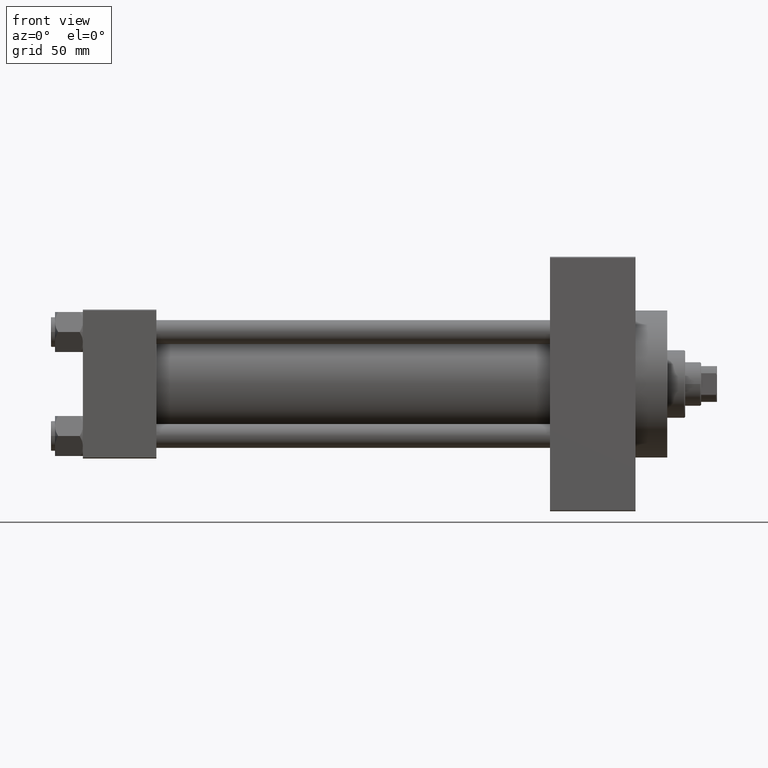
[diagram: clean part render]
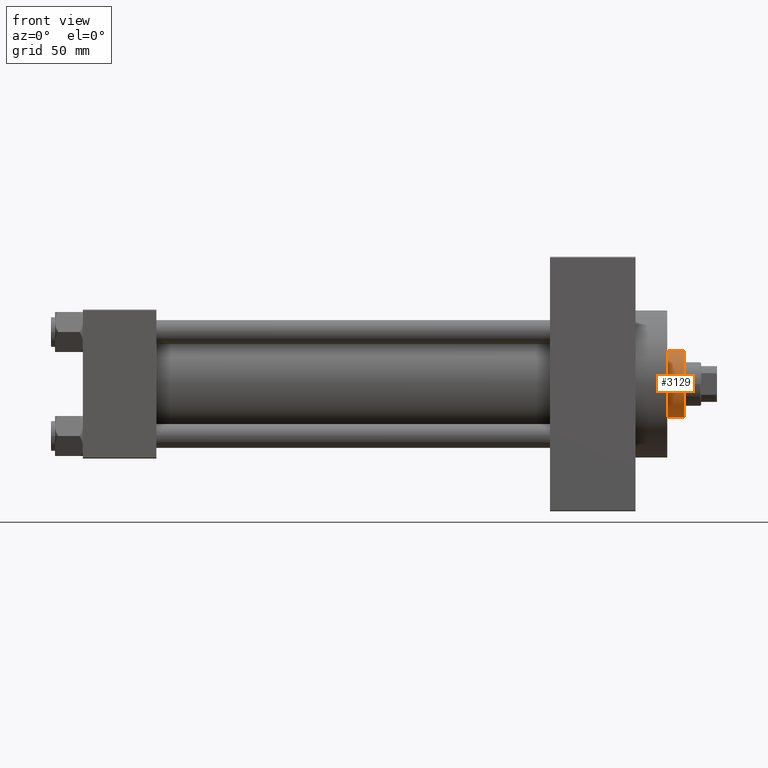
[diagram: same view with one face highlighted and labeled with its STEP entity id]
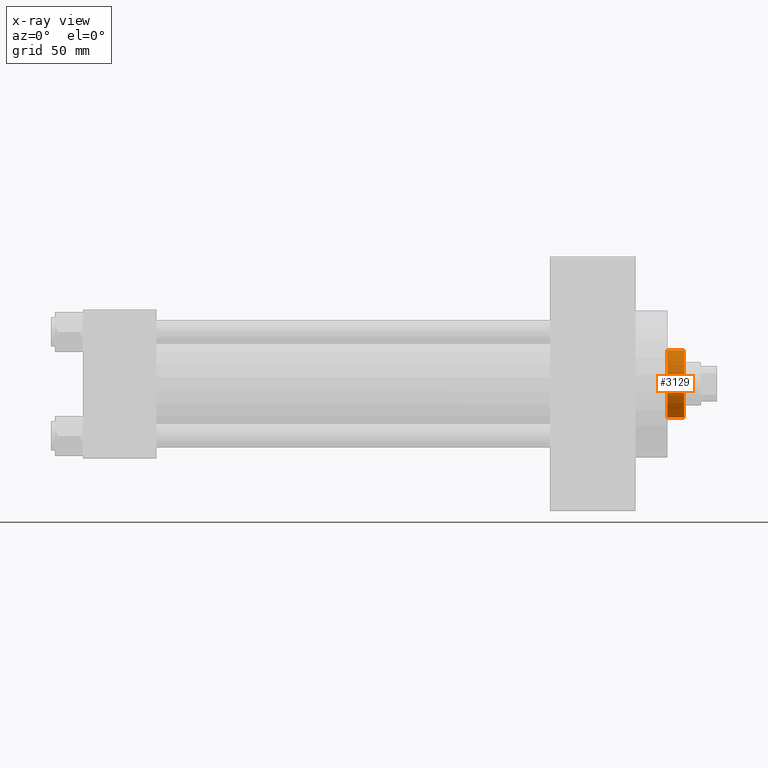
[diagram: x-ray of the same camera — body ghosted, the highlighted face saturated]
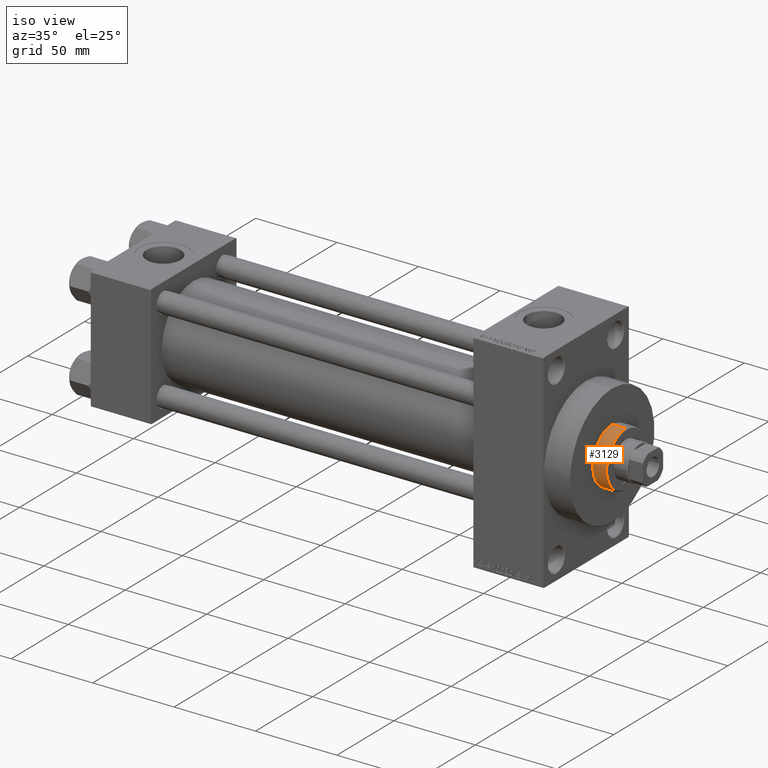
[diagram: same view with one face highlighted and labeled with its STEP entity id]
A machine part, front view. The second image highlights one B-rep face of the part: STEP entity #3129.
The next image is the same camera in x-ray: the body ghosted, the highlighted face saturated — about 0% of this face is hidden behind the body in this view.
A second angle (iso view) of the same face is appended — the face is thin or edge-on in the first view.
In plain terms, the highlighted cylindrical surface (edge-blend (fillet) strip) has radius 17 mm, axis along (-1, 0, 0).
Its self-contained STEP definition (entity closure, byte-faithful):
#1231 = CIRCLE ( 'NONE', #40238, 17.00000000000000000 ) ;
#3129 = ADVANCED_FACE ( 'NONE', ( #46261 ), #38776, .T. ) ;
#3937 = CARTESIAN_POINT ( 'NONE',  ( -17.00000000000000000, 0.000000000000000000, 51.76000000000000512 ) ) ;
#4438 = DIRECTION ( 'NONE',  ( 0.000000000000000000, 0.000000000000000000, -1.000000000000000000 ) ) ;
#4613 = ORIENTED_EDGE ( 'NONE', *, *, #46504, .T. ) ;
#5488 = VECTOR ( 'NONE', #34594, 1000.000000000000000 ) ;
#6105 = EDGE_CURVE ( 'NONE', #14947, #12177, #1231, .T. ) ;
#6980 = LINE ( 'NONE', #34114, #5488 ) ;
#8204 = ORIENTED_EDGE ( 'NONE', *, *, #43793, .T. ) ;
#8739 = CARTESIAN_POINT ( 'NONE',  ( 0.000000000000000000, 0.000000000000000000, 43.25999999999999801 ) ) ;
#8921 = EDGE_LOOP ( 'NONE', ( #32414, #8204, #4613, #38328 ) ) ;
#10912 = DIRECTION ( 'NONE',  ( -0.000000000000000000, -0.000000000000000000, -1.000000000000000000 ) ) ;
#12177 = VERTEX_POINT ( 'NONE', #29442 ) ;
#14947 = VERTEX_POINT ( 'NONE', #3937 ) ;
#18226 = CARTESIAN_POINT ( 'NONE',  ( 17.00000000000000000, 2.081899558550500280E-15, 43.25999999999999801 ) ) ;
#21337 = CIRCLE ( 'NONE', #48434, 17.00000000000000000 ) ;
#25289 = VECTOR ( 'NONE', #10912, 1000.000000000000000 ) ;
#25665 = VERTEX_POINT ( 'NONE', #18226 ) ;
#29442 = CARTESIAN_POINT ( 'NONE',  ( 17.00000000000000000, 2.081899558550500280E-15, 51.76000000000000512 ) ) ;
#30324 = LINE ( 'NONE', #45061, #25289 ) ;
#30630 = VERTEX_POINT ( 'NONE', #31311 ) ;
#31311 = CARTESIAN_POINT ( 'NONE',  ( -17.00000000000000000, 0.000000000000000000, 43.25999999999999801 ) ) ;
#31820 = DIRECTION ( 'NONE',  ( 1.000000000000000000, 0.000000000000000000, 0.000000000000000000 ) ) ;
#32414 = ORIENTED_EDGE ( 'NONE', *, *, #6105, .T. ) ;
#34114 = CARTESIAN_POINT ( 'NONE',  ( 17.00000000000000000, 2.081899558550500280E-15, 52.25999999999999801 ) ) ;
#34594 = DIRECTION ( 'NONE',  ( -0.000000000000000000, -0.000000000000000000, -1.000000000000000000 ) ) ;
#35772 = DIRECTION ( 'NONE',  ( -0.000000000000000000, -0.000000000000000000, -1.000000000000000000 ) ) ;
#38328 = ORIENTED_EDGE ( 'NONE', *, *, #44997, .F. ) ;
#38566 = CARTESIAN_POINT ( 'NONE',  ( 0.000000000000000000, 0.000000000000000000, 51.76000000000000512 ) ) ;
#38776 = CYLINDRICAL_SURFACE ( 'NONE', #39292, 17.00000000000000000 ) ;
#39292 = AXIS2_PLACEMENT_3D ( 'NONE', #43260, #35772, #43018 ) ;
#40238 = AXIS2_PLACEMENT_3D ( 'NONE', #38566, #4438, #31820 ) ;
#43018 = DIRECTION ( 'NONE',  ( -1.000000000000000000, 0.000000000000000000, 0.000000000000000000 ) ) ;
#43110 = DIRECTION ( 'NONE',  ( 0.000000000000000000, 0.000000000000000000, 1.000000000000000000 ) ) ;
#43260 = CARTESIAN_POINT ( 'NONE',  ( 0.000000000000000000, 0.000000000000000000, 52.25999999999999801 ) ) ;
#43793 = EDGE_CURVE ( 'NONE', #12177, #25665, #6980, .T. ) ;
#44997 = EDGE_CURVE ( 'NONE', #14947, #30630, #30324, .T. ) ;
#45061 = CARTESIAN_POINT ( 'NONE',  ( -17.00000000000000000, 0.000000000000000000, 52.25999999999999801 ) ) ;
#46261 = FACE_OUTER_BOUND ( 'NONE', #8921, .T. ) ;
#46365 = DIRECTION ( 'NONE',  ( 1.000000000000000000, 0.000000000000000000, 0.000000000000000000 ) ) ;
#46504 = EDGE_CURVE ( 'NONE', #25665, #30630, #21337, .T. ) ;
#48434 = AXIS2_PLACEMENT_3D ( 'NONE', #8739, #43110, #46365 ) ;